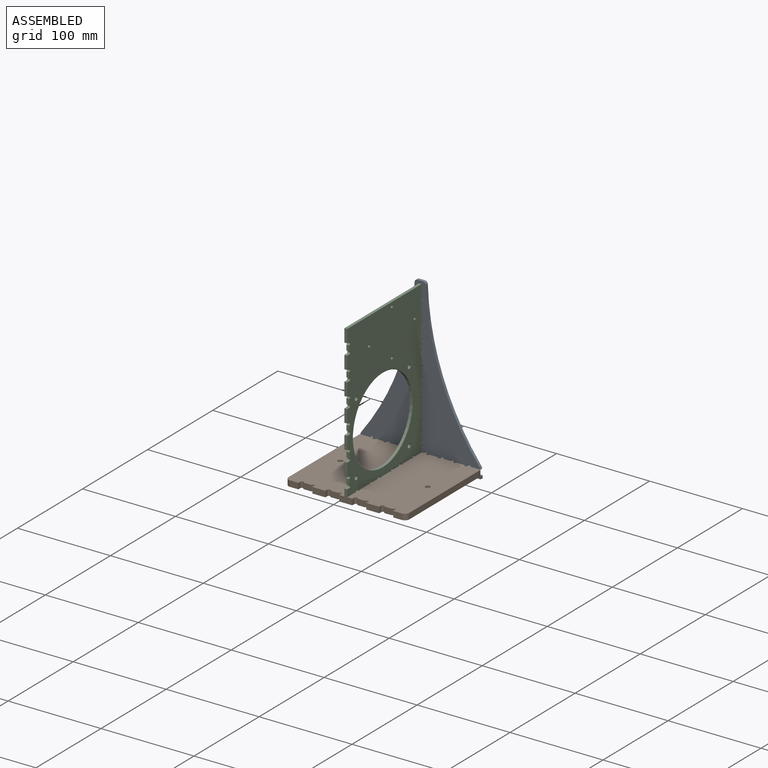
[diagram: assembled view]
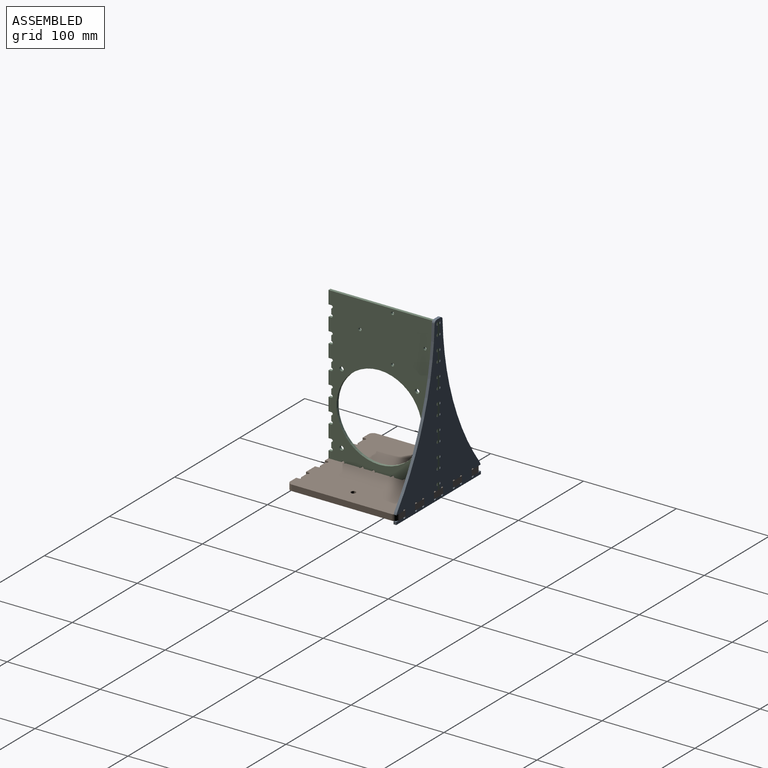
[diagram: assembled view, second angle]
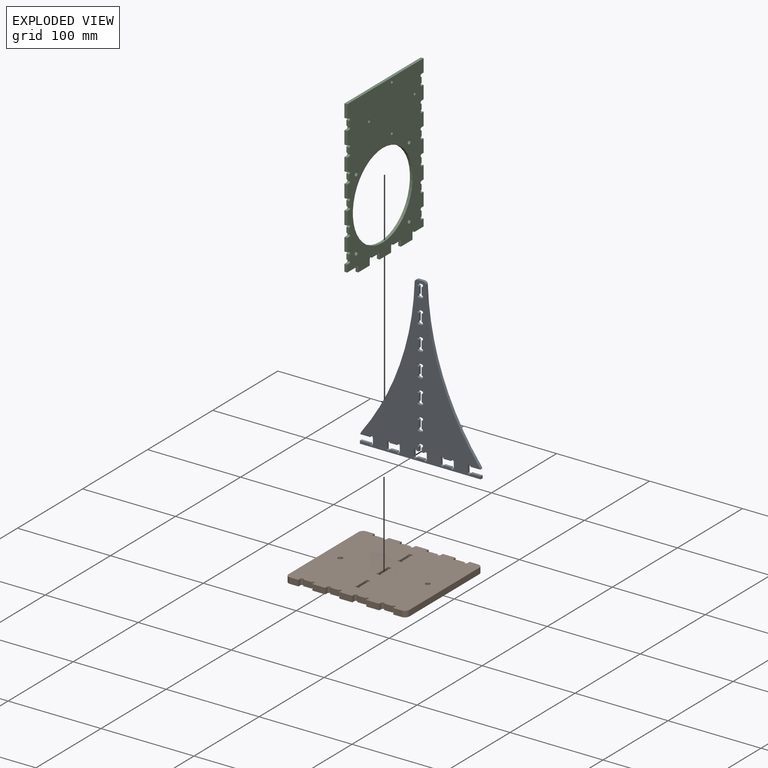
[diagram: exploded view]
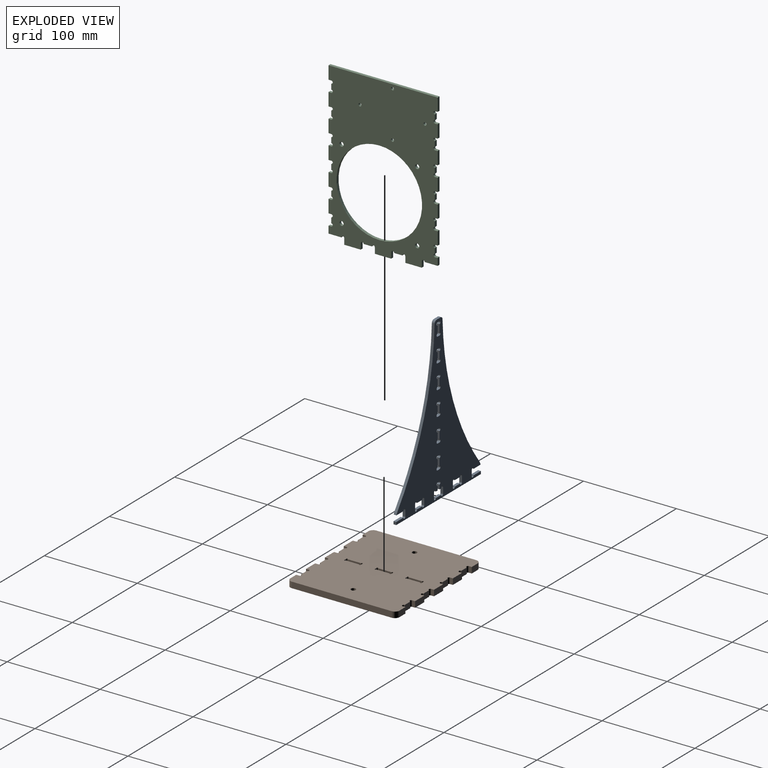
[diagram: exploded view, second angle]
ASSEMBLY  parts=3 mates=2
PART A: 100 faces, bbox 130x3x176 mm
  f0: plane 176x130mm, normal (0,-1,0), area 8856mm2, adj f2,f3,f4,f5,f6,f7,f8,f9
  f1: plane 176x130mm, normal (0,1,0), area 8856mm2, adj f2,f3,f4,f5,f6,f7,f8,f9
  f2: plane 3x2.5mm, normal (0,0,-1), area 7.5mm2, adj f0,f1,f19,f57
  f3: plane 11x3mm, normal (0,0,1), area 33mm2, adj f0,f1,f6,f46
  f4: plane 10.61x3mm, normal (0,0,-1), area 31.8mm2, adj f0,f1,f14,f45
  f5: cylinder r=10mm len=3.3mm, axis (0,1,0), area 11.1mm2, adj f0,f1,f9,f41
  f6: plane 3x3mm, normal (-1,0,0), area 9mm2, adj f0,f1,f3,f7
  f7: plane 130x3mm, normal (0,0,-1), area 390mm2, adj f0,f1,f6,f8
  f8: plane 3x3mm, normal (1,0,0), area 9mm2, adj f0,f1,f7,f40
  f9: cylinder r=280mm len=160.45mm, axis (0,1,0), area 518.9mm2, adj f0,f1,f5,f13
  f10: plane 6.16x3mm, normal (0,0,1), area 18.5mm2, adj f0,f1,f12,f13
  f11: cylinder r=280mm len=160.45mm, axis (0,1,0), area 518.9mm2, adj f0,f1,f12,f14
  f12: cylinder r=3mm len=3mm, axis (0,1,0), area 13.9mm2, adj f0,f1,f10,f11
  f13: cylinder r=3mm len=3mm, axis (0,1,0), area 13.9mm2, adj f0,f1,f9,f10
  f14: cylinder r=10mm len=3.3mm, axis (0,1,0), area 11.1mm2, adj f0,f1,f4,f11
  f15: plane 8x3mm, normal (0,0,1), area 24mm2, adj f0,f1,f20,f22
  f16: plane 6.35x3mm, normal (-1,0,0), area 19.1mm2, adj f0,f1,f21,f22
  f17: plane 3x2.5mm, normal (0,0,-1), area 7.5mm2, adj f0,f1,f21,f56
  f18: plane 6.35x3mm, normal (1,0,0), area 19.1mm2, adj f0,f1,f19,f20
  f19: cylinder r=1.5mm len=3mm, axis (0,-1,0), area 14.1mm2, adj f0,f1,f2,f18
  f20: cylinder r=1.5mm len=3mm, axis (0,-1,0), area 14.1mm2, adj f0,f1,f15,f18
  f21: cylinder r=1.5mm len=3mm, axis (0,-1,0), area 14.1mm2, adj f0,f1,f16,f17
  f22: cylinder r=1.5mm len=3mm, axis (0,-1,0), area 14.1mm2, adj f0,f1,f15,f16
  f23: plane 8x3mm, normal (0,0,1), area 24mm2, adj f0,f1,f28,f30
  f24: plane 6.35x3mm, normal (-1,0,0), area 19.1mm2, adj f0,f1,f29,f30
  f25: plane 8x3mm, normal (0,0,-1), area 24mm2, adj f0,f1,f27,f29
  f26: plane 6.35x3mm, normal (1,0,0), area 19.1mm2, adj f0,f1,f27,f28
  f27: cylinder r=1.5mm len=3mm, axis (0,-1,0), area 14.1mm2, adj f0,f1,f25,f26
  f28: cylinder r=1.5mm len=3mm, axis (0,-1,0), area 14.1mm2, adj f0,f1,f23,f26
  f29: cylinder r=1.5mm len=3mm, axis (0,-1,0), area 14.1mm2, adj f0,f1,f24,f25
  f30: cylinder r=1.5mm len=3mm, axis (0,-1,0), area 14.1mm2, adj f0,f1,f23,f24
  f31: plane 8x3mm, normal (0,0,1), area 24mm2, adj f0,f1,f36,f38
  f32: plane 6.35x3mm, normal (-1,0,0), area 19.1mm2, adj f0,f1,f37,f38
  f33: plane 8x3mm, normal (0,0,-1), area 24mm2, adj f0,f1,f35,f37
  f34: plane 6.35x3mm, normal (1,0,0), area 19.1mm2, adj f0,f1,f35,f36
  f35: cylinder r=1.5mm len=3mm, axis (0,-1,0), area 14.1mm2, adj f0,f1,f33,f34
  f36: cylinder r=1.5mm len=3mm, axis (0,-1,0), area 14.1mm2, adj f0,f1,f31,f34
  f37: cylinder r=1.5mm len=3mm, axis (0,-1,0), area 14.1mm2, adj f0,f1,f32,f33
  f38: cylinder r=1.5mm len=3mm, axis (0,-1,0), area 14.1mm2, adj f0,f1,f31,f32
  f39: plane 6.35x3mm, normal (1,0,0), area 19.1mm2, adj f0,f1,f42,f43
  f40: plane 11x3mm, normal (0,0,1), area 33mm2, adj f0,f1,f8,f43
  f41: plane 10.61x3mm, normal (0,0,-1), area 31.8mm2, adj f0,f1,f5,f42
  f42: cylinder r=1.5mm len=3mm, axis (0,-1,0), area 14.1mm2, adj f0,f1,f39,f41
  f43: cylinder r=1.5mm len=3mm, axis (0,-1,0), area 14.1mm2, adj f0,f1,f39,f40
  f44: plane 6.35x3mm, normal (-1,0,0), area 19.1mm2, adj f0,f1,f45,f46
  f45: cylinder r=1.5mm len=3mm, axis (0,-1,0), area 14.1mm2, adj f0,f1,f4,f44
  f46: cylinder r=1.5mm len=3mm, axis (0,-1,0), area 14.1mm2, adj f0,f1,f3,f44
  f47: plane 3x3mm, normal (0,0,1), area 9mm2, adj f0,f1,f51,f54
  f48: plane 8x3mm, normal (-1,0,0), area 24mm2, adj f0,f1,f52,f54
  f49: plane 3x3mm, normal (0,0,-1), area 9mm2, adj f0,f1,f52,f53
  f50: plane 8x3mm, normal (1,0,0), area 24mm2, adj f0,f1,f51,f53
  f51: cylinder r=1.5mm len=3mm, axis (0,-1,0), area 14.1mm2, adj f0,f1,f47,f50
  f52: cylinder r=1.5mm len=3mm, axis (0,-1,0), area 14.1mm2, adj f0,f1,f48,f49
  f53: cylinder r=1.5mm len=3mm, axis (0,-1,0), area 14.1mm2, adj f0,f1,f49,f50
  f54: cylinder r=1.5mm len=3mm, axis (0,-1,0), area 14.1mm2, adj f0,f1,f47,f48
  f55: plane 3x3mm, normal (0,0,-1), area 9mm2, adj f0,f1,f58,f59
  f56: plane 4.65x3mm, normal (-1,0,0), area 14mm2, adj f0,f1,f17,f58
  f57: plane 4.65x3mm, normal (1,0,0), area 14mm2, adj f0,f1,f2,f59
  f58: cylinder r=1.5mm len=3mm, axis (0,-1,0), area 14.1mm2, adj f0,f1,f55,f56
  f59: cylinder r=1.5mm len=3mm, axis (0,-1,0), area 14.1mm2, adj f0,f1,f55,f57
  f60: plane 3x3mm, normal (0,0,1), area 9mm2, adj f0,f1,f64,f67
  f61: plane 8x3mm, normal (-1,0,0), area 24mm2, adj f0,f1,f65,f67
  f62: plane 3x3mm, normal (0,0,-1), area 9mm2, adj f0,f1,f65,f66
  f63: plane 8x3mm, normal (1,0,0), area 24mm2, adj f0,f1,f64,f66
  f64: cylinder r=1.5mm len=3mm, axis (0,-1,0), area 14.1mm2, adj f0,f1,f60,f63
  f65: cylinder r=1.5mm len=3mm, axis (0,-1,0), area 14.1mm2, adj f0,f1,f61,f62
  f66: cylinder r=1.5mm len=3mm, axis (0,-1,0), area 14.1mm2, adj f0,f1,f62,f63
  f67: cylinder r=1.5mm len=3mm, axis (0,-1,0), area 14.1mm2, adj f0,f1,f60,f61
  f68: plane 3x3mm, normal (0,0,1), area 9mm2, adj f0,f1,f72,f75
  f69: plane 8x3mm, normal (-1,0,0), area 24mm2, adj f0,f1,f73,f75
  f70: plane 3x3mm, normal (0,0,-1), area 9mm2, adj f0,f1,f73,f74
  f71: plane 8x3mm, normal (1,0,0), area 24mm2, adj f0,f1,f72,f74
  f72: cylinder r=1.5mm len=3mm, axis (0,-1,0), area 14.1mm2, adj f0,f1,f68,f71
  f73: cylinder r=1.5mm len=3mm, axis (0,-1,0), area 14.1mm2, adj f0,f1,f69,f70
  f74: cylinder r=1.5mm len=3mm, axis (0,-1,0), area 14.1mm2, adj f0,f1,f70,f71
  f75: cylinder r=1.5mm len=3mm, axis (0,-1,0), area 14.1mm2, adj f0,f1,f68,f69
  f76: plane 3x3mm, normal (0,0,1), area 9mm2, adj f0,f1,f80,f83
  f77: plane 8x3mm, normal (-1,0,0), area 24mm2, adj f0,f1,f81,f83
  f78: plane 3x3mm, normal (0,0,-1), area 9mm2, adj f0,f1,f81,f82
  f79: plane 8x3mm, normal (1,0,0), area 24mm2, adj f0,f1,f80,f82
  f80: cylinder r=1.5mm len=3mm, axis (0,-1,0), area 14.1mm2, adj f0,f1,f76,f79
  f81: cylinder r=1.5mm len=3mm, axis (0,-1,0), area 14.1mm2, adj f0,f1,f77,f78
  f82: cylinder r=1.5mm len=3mm, axis (0,-1,0), area 14.1mm2, adj f0,f1,f78,f79
  f83: cylinder r=1.5mm len=3mm, axis (0,-1,0), area 14.1mm2, adj f0,f1,f76,f77
  f84: plane 3x3mm, normal (0,0,1), area 9mm2, adj f0,f1,f88,f91
  f85: plane 8x3mm, normal (-1,0,0), area 24mm2, adj f0,f1,f89,f91
  f86: plane 3x3mm, normal (0,0,-1), area 9mm2, adj f0,f1,f89,f90
  f87: plane 8x3mm, normal (1,0,0), area 24mm2, adj f0,f1,f88,f90
  f88: cylinder r=1.5mm len=3mm, axis (0,-1,0), area 14.1mm2, adj f0,f1,f84,f87
  f89: cylinder r=1.5mm len=3mm, axis (0,-1,0), area 14.1mm2, adj f0,f1,f85,f86
  f90: cylinder r=1.5mm len=3mm, axis (0,-1,0), area 14.1mm2, adj f0,f1,f86,f87
  f91: cylinder r=1.5mm len=3mm, axis (0,-1,0), area 14.1mm2, adj f0,f1,f84,f85
  f92: plane 3x3mm, normal (0,0,1), area 9mm2, adj f0,f1,f96,f99
  f93: plane 8x3mm, normal (-1,0,0), area 24mm2, adj f0,f1,f97,f99
  f94: plane 3x3mm, normal (0,0,-1), area 9mm2, adj f0,f1,f97,f98
  f95: plane 8x3mm, normal (1,0,0), area 24mm2, adj f0,f1,f96,f98
  f96: cylinder r=1.5mm len=3mm, axis (0,-1,0), area 14.1mm2, adj f0,f1,f92,f95
  f97: cylinder r=1.5mm len=3mm, axis (0,-1,0), area 14.1mm2, adj f0,f1,f93,f94
  f98: cylinder r=1.5mm len=3mm, axis (0,-1,0), area 14.1mm2, adj f0,f1,f94,f95
  f99: cylinder r=1.5mm len=3mm, axis (0,-1,0), area 14.1mm2, adj f0,f1,f92,f93
PART B: 84 faces, bbox 130x117.4x6.4 mm
  f0: plane 130x117.4mm, normal (0,0,1), area 14605.3mm2, adj f2,f3,f4,f5,f6,f7,f8,f9
  f1: plane 130x117.4mm, normal (0,0,-1), area 14605.3mm2, adj f2,f3,f4,f5,f6,f7,f8,f9
  f2: plane 9x6.35mm, normal (0,-1,0), area 57.1mm2, adj f0,f1,f47,f80
  f3: plane 14x6.35mm, normal (0,-1,0), area 88.9mm2, adj f0,f1,f44,f49
  f4: plane 8.65x6.35mm, normal (0,-1,0), area 54.9mm2, adj f0,f1,f42,f43
  f5: plane 8.65x6.35mm, normal (0,-1,0), area 54.9mm2, adj f0,f1,f40,f41
  f6: plane 14x6.35mm, normal (0,-1,0), area 88.9mm2, adj f0,f1,f37,f38
  f7: plane 14x6.35mm, normal (0,-1,0), area 88.9mm2, adj f0,f1,f36,f46
  f8: plane 8.65x6.35mm, normal (0,1,0), area 54.9mm2, adj f0,f1,f34,f35
  f9: plane 8.65x6.35mm, normal (0,1,0), area 54.9mm2, adj f0,f1,f32,f33
  f10: plane 9x6.35mm, normal (0,1,0), area 57.1mm2, adj f0,f1,f31,f81
  f11: plane 14x6.35mm, normal (0,1,0), area 88.9mm2, adj f0,f1,f29,f30
  f12: plane 14x6.35mm, normal (0,1,0), area 88.9mm2, adj f0,f1,f18,f23
  f13: plane 14x6.35mm, normal (0,1,0), area 88.9mm2, adj f0,f1,f20,f28
  f14: plane 9x6.35mm, normal (0,-1,0), area 57.1mm2, adj f0,f1,f39,f83
  f15: plane 107.4x6.35mm, normal (1,0,0), area 682mm2, adj f0,f1,f80,f81
  f16: plane 9x6.35mm, normal (0,1,0), area 57.1mm2, adj f0,f1,f21,f82
  f17: plane 107.4x6.35mm, normal (-1,0,0), area 682mm2, adj f0,f1,f82,f83
  f18: plane 6.35x3mm, normal (1,0,0), area 19mm2, adj f0,f1,f12,f27
  f19: plane 8.65x6.35mm, normal (0,1,0), area 54.9mm2, adj f0,f1,f26,f27
  f20: plane 6.35x3mm, normal (-1,0,0), area 19mm2, adj f0,f1,f13,f26
  f21: plane 6.35x3mm, normal (1,0,0), area 19mm2, adj f0,f1,f16,f25
  f22: plane 8.65x6.35mm, normal (0,1,0), area 54.9mm2, adj f0,f1,f24,f25
  f23: plane 6.35x3mm, normal (-1,0,0), area 19mm2, adj f0,f1,f12,f24
  f24: cylinder r=1.59mm len=6.35mm, axis (0,0,1), area 31.7mm2, adj f0,f1,f22,f23
  f25: cylinder r=1.59mm len=6.35mm, axis (0,0,1), area 31.7mm2, adj f0,f1,f21,f22
  f26: cylinder r=1.59mm len=6.35mm, axis (0,0,1), area 31.7mm2, adj f0,f1,f19,f20
  f27: cylinder r=1.59mm len=6.35mm, axis (0,0,1), area 31.7mm2, adj f0,f1,f18,f19
  f28: plane 6.35x3mm, normal (1,0,0), area 19mm2, adj f0,f1,f13,f35
  f29: plane 6.35x3mm, normal (-1,0,0), area 19mm2, adj f0,f1,f11,f34
  f30: plane 6.35x3mm, normal (1,0,0), area 19mm2, adj f0,f1,f11,f33
  f31: plane 6.35x3mm, normal (-1,0,0), area 19mm2, adj f0,f1,f10,f32
  f32: cylinder r=1.59mm len=6.35mm, axis (0,0,1), area 31.7mm2, adj f0,f1,f9,f31
  f33: cylinder r=1.59mm len=6.35mm, axis (0,0,1), area 31.7mm2, adj f0,f1,f9,f30
  f34: cylinder r=1.59mm len=6.35mm, axis (0,0,1), area 31.7mm2, adj f0,f1,f8,f29
  f35: cylinder r=1.59mm len=6.35mm, axis (0,0,1), area 31.7mm2, adj f0,f1,f8,f28
  f36: plane 6.35x3mm, normal (-1,0,0), area 19mm2, adj f0,f1,f7,f43
  f37: plane 6.35x3mm, normal (1,0,0), area 19mm2, adj f0,f1,f6,f42
  f38: plane 6.35x3mm, normal (-1,0,0), area 19mm2, adj f0,f1,f6,f41
  f39: plane 6.35x3mm, normal (1,0,0), area 19mm2, adj f0,f1,f14,f40
  f40: cylinder r=1.59mm len=6.35mm, axis (0,0,1), area 31.7mm2, adj f0,f1,f5,f39
  f41: cylinder r=1.59mm len=6.35mm, axis (0,0,1), area 31.7mm2, adj f0,f1,f5,f38
  f42: cylinder r=1.59mm len=6.35mm, axis (0,0,1), area 31.7mm2, adj f0,f1,f4,f37
  f43: cylinder r=1.59mm len=6.35mm, axis (0,0,1), area 31.7mm2, adj f0,f1,f4,f36
  f44: plane 6.35x3mm, normal (-1,0,0), area 19mm2, adj f0,f1,f3,f53
  f45: plane 8.65x6.35mm, normal (0,-1,0), area 54.9mm2, adj f0,f1,f52,f53
  f46: plane 6.35x3mm, normal (1,0,0), area 19mm2, adj f0,f1,f7,f52
  f47: plane 6.35x3mm, normal (-1,0,0), area 19mm2, adj f0,f1,f2,f51
  f48: plane 8.65x6.35mm, normal (0,-1,0), area 54.9mm2, adj f0,f1,f50,f51
  f49: plane 6.35x3mm, normal (1,0,0), area 19mm2, adj f0,f1,f3,f50
  f50: cylinder r=1.59mm len=6.35mm, axis (0,0,1), area 31.7mm2, adj f0,f1,f48,f49
  f51: cylinder r=1.59mm len=6.35mm, axis (0,0,1), area 31.7mm2, adj f0,f1,f47,f48
  f52: cylinder r=1.59mm len=6.35mm, axis (0,0,1), area 31.7mm2, adj f0,f1,f45,f46
  f53: cylinder r=1.59mm len=6.35mm, axis (0,0,1), area 31.7mm2, adj f0,f1,f44,f45
  f54: cylinder r=2.56mm len=6.35mm, axis (0,0,1), area 101.9mm2, adj f0,f1
  f55: cylinder r=2.56mm len=6.35mm, axis (0,0,1), area 101.9mm2, adj f0,f1
  f56: plane 6.35x3mm, normal (0,1,0), area 19mm2, adj f0,f1,f60,f63
  f57: plane 14.49x6.35mm, normal (-1,0,0), area 92mm2, adj f0,f1,f62,f63
  f58: plane 6.35x3mm, normal (0,-1,0), area 19mm2, adj f0,f1,f61,f62
  f59: plane 14.49x6.35mm, normal (1,0,0), area 92mm2, adj f0,f1,f60,f61
  f60: cylinder r=0.79mm len=6.35mm, axis (0,0,1), area 15.8mm2, adj f0,f1,f56,f59
  f61: cylinder r=0.79mm len=6.35mm, axis (0,0,1), area 15.8mm2, adj f0,f1,f58,f59
  f62: cylinder r=0.79mm len=6.35mm, axis (0,0,1), area 15.8mm2, adj f0,f1,f57,f58
  f63: cylinder r=0.79mm len=6.35mm, axis (0,0,1), area 15.8mm2, adj f0,f1,f56,f57
  f64: plane 6.35x3mm, normal (0,1,0), area 19mm2, adj f0,f1,f68,f71
  f65: plane 14.49x6.35mm, normal (-1,0,0), area 92mm2, adj f0,f1,f70,f71
  f66: plane 6.35x3mm, normal (0,-1,0), area 19mm2, adj f0,f1,f69,f70
  f67: plane 14.49x6.35mm, normal (1,0,0), area 92mm2, adj f0,f1,f68,f69
  f68: cylinder r=0.79mm len=6.35mm, axis (0,0,1), area 15.8mm2, adj f0,f1,f64,f67
  f69: cylinder r=0.79mm len=6.35mm, axis (0,0,1), area 15.8mm2, adj f0,f1,f66,f67
  f70: cylinder r=0.79mm len=6.35mm, axis (0,0,1), area 15.8mm2, adj f0,f1,f65,f66
  f71: cylinder r=0.79mm len=6.35mm, axis (0,0,1), area 15.8mm2, adj f0,f1,f64,f65
  f72: plane 6.35x3mm, normal (0,1,0), area 19mm2, adj f0,f1,f76,f79
  f73: plane 14.49x6.35mm, normal (-1,0,0), area 92mm2, adj f0,f1,f78,f79
  f74: plane 6.35x3mm, normal (0,-1,0), area 19mm2, adj f0,f1,f77,f78
  f75: plane 14.49x6.35mm, normal (1,0,0), area 92mm2, adj f0,f1,f76,f77
  f76: cylinder r=0.79mm len=6.35mm, axis (0,0,1), area 15.8mm2, adj f0,f1,f72,f75
  f77: cylinder r=0.79mm len=6.35mm, axis (0,0,1), area 15.8mm2, adj f0,f1,f74,f75
  f78: cylinder r=0.79mm len=6.35mm, axis (0,0,1), area 15.8mm2, adj f0,f1,f73,f74
  f79: cylinder r=0.79mm len=6.35mm, axis (0,0,1), area 15.8mm2, adj f0,f1,f72,f73
  f80: cylinder r=5mm len=6.35mm, axis (0,0,1), area 49.9mm2, adj f0,f1,f2,f15
  f81: cylinder r=5mm len=6.35mm, axis (0,0,-1), area 49.9mm2, adj f0,f1,f10,f15
  f82: cylinder r=5mm len=6.35mm, axis (0,0,1), area 49.9mm2, adj f0,f1,f16,f17
  f83: cylinder r=5mm len=6.35mm, axis (0,0,-1), area 49.9mm2, adj f0,f1,f14,f17
PART C: 105 faces, bbox 3x117.4x170 mm
  f0: plane 8.8x3mm, normal (0,0,-1), area 26.4mm2, adj f7,f8,f94,f95
  f1: plane 13.88x3mm, normal (0,0,-1), area 41.6mm2, adj f4,f7,f8,f93
  f2: plane 17.67x3mm, normal (0,0,-1), area 53mm2, adj f7,f8,f90,f92
  f3: plane 17.67x3mm, normal (0,0,-1), area 53mm2, adj f7,f8,f83,f91
  f4: plane 7.65x3mm, normal (0,1,0), area 23mm2, adj f1,f7,f8,f67
  f5: plane 17.67x3mm, normal (0,0,-1), area 53mm2, adj f7,f8,f82,f86
  f6: plane 7.65x3mm, normal (0,-1,0), area 23mm2, adj f7,f8,f55,f85
  f7: plane 170x117.4mm, normal (1,0,0), area 12252.5mm2, adj f0,f1,f2,f3,f4,f5,f6,f9
  f8: plane 170x117.4mm, normal (-1,0,0), area 12252.5mm2, adj f0,f1,f2,f3,f4,f5,f6,f9
  f9: plane 14x3mm, normal (0,1,0), area 42mm2, adj f7,f8,f48,f73
  f10: plane 14x3mm, normal (0,1,0), area 42mm2, adj f7,f8,f70,f75
  f11: plane 14x3mm, normal (0,1,0), area 42mm2, adj f7,f8,f68,f72
  f12: plane 5.65x3mm, normal (0,-1,0), area 17mm2, adj f7,f8,f65,f66
  f13: plane 5.65x3mm, normal (0,-1,0), area 17mm2, adj f7,f8,f63,f64
  f14: plane 5.65x3mm, normal (0,-1,0), area 17mm2, adj f7,f8,f61,f62
  f15: plane 14x3mm, normal (0,-1,0), area 42mm2, adj f7,f8,f34,f60
  f16: plane 14x3mm, normal (0,-1,0), area 42mm2, adj f7,f8,f58,f59
  f17: plane 14x3mm, normal (0,-1,0), area 42mm2, adj f7,f8,f56,f57
  f18: plane 5.65x3mm, normal (0,1,0), area 17mm2, adj f7,f8,f53,f54
  f19: plane 5.65x3mm, normal (0,1,0), area 17mm2, adj f7,f8,f51,f52
  f20: plane 5.65x3mm, normal (0,1,0), area 17mm2, adj f7,f8,f49,f50
  f21: plane 14x3mm, normal (0,1,0), area 42mm2, adj f7,f8,f46,f47
  f22: plane 14x3mm, normal (0,1,0), area 42mm2, adj f7,f8,f44,f45
  f23: plane 14x3mm, normal (0,1,0), area 42mm2, adj f7,f8,f27,f43
  f24: plane 14x3mm, normal (0,-1,0), area 42mm2, adj f7,f8,f31,f36
  f25: plane 14x3mm, normal (0,-1,0), area 42mm2, adj f7,f8,f29,f33
  f26: plane 14x3mm, normal (0,-1,0), area 42mm2, adj f7,f8,f27,f28
  f27: plane 117.4x3mm, normal (0,0,1), area 352.2mm2, adj f7,f8,f23,f26
  f28: plane 3x3mm, normal (0,0,-1), area 9mm2, adj f7,f8,f26,f42
  f29: plane 3x3mm, normal (0,0,1), area 9mm2, adj f7,f8,f25,f41
  f30: plane 5.65x3mm, normal (0,-1,0), area 17mm2, adj f7,f8,f41,f42
  f31: plane 3x3mm, normal (0,0,1), area 9mm2, adj f7,f8,f24,f40
  f32: plane 5.65x3mm, normal (0,-1,0), area 17mm2, adj f7,f8,f39,f40
  f33: plane 3x3mm, normal (0,0,-1), area 9mm2, adj f7,f8,f25,f39
  f34: plane 3x3mm, normal (0,0,1), area 9mm2, adj f7,f8,f15,f38
  f35: plane 5.65x3mm, normal (0,-1,0), area 17mm2, adj f7,f8,f37,f38
  f36: plane 3x3mm, normal (0,0,-1), area 9mm2, adj f7,f8,f24,f37
  f37: cylinder r=1.59mm len=3.18mm, axis (1,0,0), area 15mm2, adj f7,f8,f35,f36
  f38: cylinder r=1.59mm len=3.18mm, axis (1,0,0), area 15mm2, adj f7,f8,f34,f35
  f39: cylinder r=1.59mm len=3.18mm, axis (1,0,0), area 15mm2, adj f7,f8,f32,f33
  f40: cylinder r=1.59mm len=3.18mm, axis (1,0,0), area 15mm2, adj f7,f8,f31,f32
  f41: cylinder r=1.59mm len=3.18mm, axis (1,0,0), area 15mm2, adj f7,f8,f29,f30
  f42: cylinder r=1.59mm len=3.18mm, axis (1,0,0), area 15mm2, adj f7,f8,f28,f30
  f43: plane 3x3mm, normal (0,0,-1), area 9mm2, adj f7,f8,f23,f54
  f44: plane 3x3mm, normal (0,0,1), area 9mm2, adj f7,f8,f22,f53
  f45: plane 3x3mm, normal (0,0,-1), area 9mm2, adj f7,f8,f22,f52
  f46: plane 3x3mm, normal (0,0,1), area 9mm2, adj f7,f8,f21,f51
  f47: plane 3x3mm, normal (0,0,-1), area 9mm2, adj f7,f8,f21,f50
  f48: plane 3x3mm, normal (0,0,1), area 9mm2, adj f7,f8,f9,f49
  f49: cylinder r=1.59mm len=3.18mm, axis (1,0,0), area 15mm2, adj f7,f8,f20,f48
  f50: cylinder r=1.59mm len=3.18mm, axis (1,0,0), area 15mm2, adj f7,f8,f20,f47
  f51: cylinder r=1.59mm len=3.18mm, axis (1,0,0), area 15mm2, adj f7,f8,f19,f46
  f52: cylinder r=1.59mm len=3.18mm, axis (1,0,0), area 15mm2, adj f7,f8,f19,f45
  f53: cylinder r=1.59mm len=3.18mm, axis (1,0,0), area 15mm2, adj f7,f8,f18,f44
  f54: cylinder r=1.59mm len=3.18mm, axis (1,0,0), area 15mm2, adj f7,f8,f18,f43
  f55: plane 3x3mm, normal (0,0,1), area 9mm2, adj f6,f7,f8,f66
  f56: plane 3x3mm, normal (0,0,-1), area 9mm2, adj f7,f8,f17,f65
  f57: plane 3x3mm, normal (0,0,1), area 9mm2, adj f7,f8,f17,f64
  f58: plane 3x3mm, normal (0,0,-1), area 9mm2, adj f7,f8,f16,f63
  f59: plane 3x3mm, normal (0,0,1), area 9mm2, adj f7,f8,f16,f62
  f60: plane 3x3mm, normal (0,0,-1), area 9mm2, adj f7,f8,f15,f61
  f61: cylinder r=1.59mm len=3.18mm, axis (1,0,0), area 15mm2, adj f7,f8,f14,f60
  f62: cylinder r=1.59mm len=3.18mm, axis (1,0,0), area 15mm2, adj f7,f8,f14,f59
  f63: cylinder r=1.59mm len=3.18mm, axis (1,0,0), area 15mm2, adj f7,f8,f13,f58
  f64: cylinder r=1.59mm len=3.18mm, axis (1,0,0), area 15mm2, adj f7,f8,f13,f57
  f65: cylinder r=1.59mm len=3.18mm, axis (1,0,0), area 15mm2, adj f7,f8,f12,f56
  f66: cylinder r=1.59mm len=3.18mm, axis (1,0,0), area 15mm2, adj f7,f8,f12,f55
  f67: plane 3x3mm, normal (0,0,1), area 9mm2, adj f4,f7,f8,f81
  f68: plane 3x3mm, normal (0,0,-1), area 9mm2, adj f7,f8,f11,f80
  f69: plane 5.65x3mm, normal (0,1,0), area 17mm2, adj f7,f8,f80,f81
  f70: plane 3x3mm, normal (0,0,-1), area 9mm2, adj f7,f8,f10,f79
  f71: plane 5.65x3mm, normal (0,1,0), area 17mm2, adj f7,f8,f78,f79
  f72: plane 3x3mm, normal (0,0,1), area 9mm2, adj f7,f8,f11,f78
  f73: plane 3x3mm, normal (0,0,-1), area 9mm2, adj f7,f8,f9,f77
  f74: plane 5.65x3mm, normal (0,1,0), area 17mm2, adj f7,f8,f76,f77
  f75: plane 3x3mm, normal (0,0,1), area 9mm2, adj f7,f8,f10,f76
  f76: cylinder r=1.59mm len=3.18mm, axis (1,0,0), area 15mm2, adj f7,f8,f74,f75
  f77: cylinder r=1.59mm len=3.18mm, axis (1,0,0), area 15mm2, adj f7,f8,f73,f74
  f78: cylinder r=1.59mm len=3.18mm, axis (1,0,0), area 15mm2, adj f7,f8,f71,f72
  f79: cylinder r=1.59mm len=3.18mm, axis (1,0,0), area 15mm2, adj f7,f8,f70,f71
  f80: cylinder r=1.59mm len=3.18mm, axis (1,0,0), area 15mm2, adj f7,f8,f68,f69
  f81: cylinder r=1.59mm len=3.18mm, axis (1,0,0), area 15mm2, adj f7,f8,f67,f69
  f82: plane 6.35x3mm, normal (0,1,0), area 19.1mm2, adj f5,f7,f8,f89
  f83: plane 6.35x3mm, normal (0,-1,0), area 19.1mm2, adj f3,f7,f8,f88
  f84: plane 8.8x3mm, normal (0,0,-1), area 26.4mm2, adj f7,f8,f88,f89
  f85: plane 13.88x3mm, normal (0,0,-1), area 41.6mm2, adj f6,f7,f8,f87
  f86: plane 6.35x3mm, normal (0,-1,0), area 19.1mm2, adj f5,f7,f8,f87
  f87: cylinder r=1.59mm len=3.18mm, axis (1,0,0), area 15mm2, adj f7,f8,f85,f86
  f88: cylinder r=1.59mm len=3.18mm, axis (1,0,0), area 15mm2, adj f7,f8,f83,f84
  f89: cylinder r=1.59mm len=3.18mm, axis (1,0,0), area 15mm2, adj f7,f8,f82,f84
  f90: plane 6.35x3mm, normal (0,-1,0), area 19.1mm2, adj f2,f7,f8,f95
  f91: plane 6.35x3mm, normal (0,1,0), area 19.1mm2, adj f3,f7,f8,f94
  f92: plane 6.35x3mm, normal (0,1,0), area 19.1mm2, adj f2,f7,f8,f93
  f93: cylinder r=1.59mm len=3.18mm, axis (1,0,0), area 15mm2, adj f1,f7,f8,f92
  f94: cylinder r=1.59mm len=3.18mm, axis (1,0,0), area 15mm2, adj f0,f7,f8,f91
  f95: cylinder r=1.59mm len=3.18mm, axis (1,0,0), area 15mm2, adj f0,f7,f8,f90
  f96: cylinder r=46mm len=92mm, axis (1,0,0), area 867.1mm2, adj f7,f8
  f97: cylinder r=2.3mm len=4.6mm, axis (1,0,0), area 43.4mm2, adj f7,f8
  f98: cylinder r=2.3mm len=4.6mm, axis (1,0,0), area 43.4mm2, adj f7,f8
  f99: cylinder r=2.3mm len=4.6mm, axis (1,0,0), area 43.4mm2, adj f7,f8
  f100: cylinder r=2.3mm len=4.6mm, axis (1,0,0), area 43.4mm2, adj f7,f8
  f101: cylinder r=1.59mm len=3.18mm, axis (1,0,0), area 29.9mm2, adj f7,f8
  f102: cylinder r=1.59mm len=3.18mm, axis (1,0,0), area 29.9mm2, adj f7,f8
  f103: cylinder r=1.59mm len=3.18mm, axis (1,0,0), area 29.9mm2, adj f7,f8
  f104: cylinder r=1.59mm len=3.18mm, axis (1,0,0), area 29.9mm2, adj f7,f8
PLACE A t=(-40.56,65.81,45.79)mm
PLACE B t=(-40.56,7.11,-39.21)mm
PLACE C t=(-42.06,7.11,45.79)mm
MATE fastened B.f0 <-> C.f85  axis (0,0,1) through (-39.06,-34.54,-32.86)mm
MATE fastened A.f94 <-> C.f27  axis (0,0,1) through (-39.06,65.81,130.79)mm
